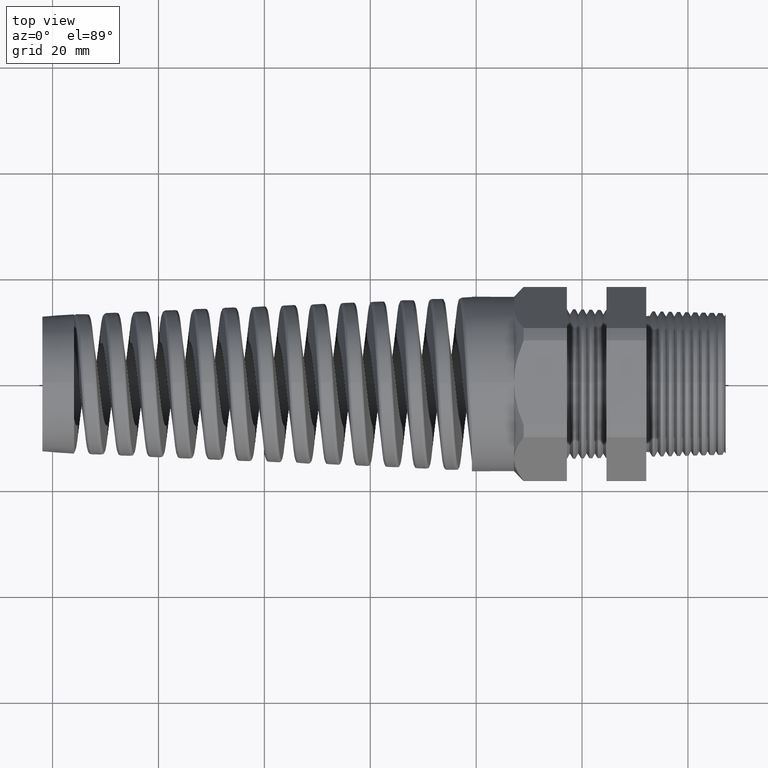
[diagram: clean part render]
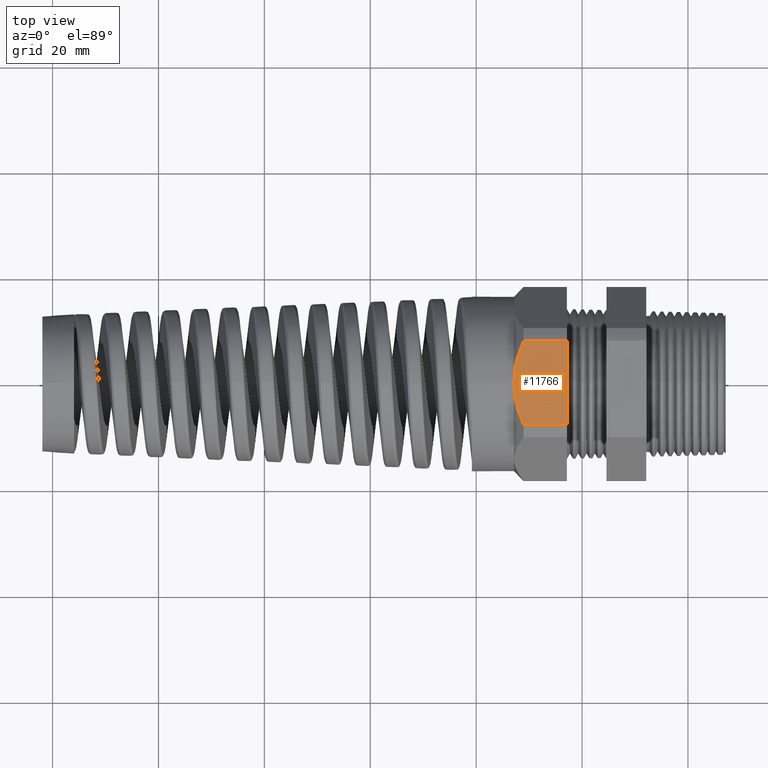
[diagram: same view with one face highlighted and labeled with its STEP entity id]
A machine part, top view. The second image highlights one B-rep face of the part: STEP entity #11766.
In plain terms, the highlighted planar face has unit normal (0, 0, 1).
Its self-contained STEP definition (entity closure, byte-faithful):
#11526 = VERTEX_POINT ( 'NONE', #16189 ) ;
#11660 = EDGE_LOOP ( 'NONE', ( #11661, #11665, #11750, #11752, #11753 ) ) ;
#11661 = ORIENTED_EDGE ( 'NONE', *, *, #11662, .T. ) ;
#11662 = EDGE_CURVE ( 'NONE', #11663, #11664, #16438, .T. ) ;
#11663 = VERTEX_POINT ( 'NONE', #16434 ) ;
#11664 = VERTEX_POINT ( 'NONE', #16433 ) ;
#11665 = ORIENTED_EDGE ( 'NONE', *, *, #11666, .T. ) ;
#11666 = EDGE_CURVE ( 'NONE', #11664, #11526, #16432, .T. ) ;
#11729 = EDGE_CURVE ( 'NONE', #11730, #11731, #16603, .T. ) ;
#11730 = VERTEX_POINT ( 'NONE', #16599 ) ;
#11731 = VERTEX_POINT ( 'NONE', #16598 ) ;
#11750 = ORIENTED_EDGE ( 'NONE', *, *, #11751, .T. ) ;
#11751 = EDGE_CURVE ( 'NONE', #11526, #11731, #16662, .T. ) ;
#11752 = ORIENTED_EDGE ( 'NONE', *, *, #11729, .F. ) ;
#11753 = ORIENTED_EDGE ( 'NONE', *, *, #11754, .F. ) ;
#11754 = EDGE_CURVE ( 'NONE', #11663, #11730, #16661, .T. ) ;
#11766 = ADVANCED_FACE ( 'NONE', ( #16690 ), #16689, .T. ) ;
#16189 = CARTESIAN_POINT ( 'NONE',  ( -1.293779527559055300, 0.0000000000000000000, 0.6499999999999999100 ) ) ;
#16417 = CARTESIAN_POINT ( 'NONE',  ( -1.293779527559055300, 0.0000000000000000000, 0.6499999999999999100 ) ) ;
#16418 = CARTESIAN_POINT ( 'NONE',  ( -1.293779527559055300, 0.02720867923416893000, 0.6499999999999999100 ) ) ;
#16419 = CARTESIAN_POINT ( 'NONE',  ( -1.292056826399679900, 0.05424748414116267000, 0.6500000000000001300 ) ) ;
#16420 = CARTESIAN_POINT ( 'NONE',  ( -1.285468250192981300, 0.1075827506458431600, 0.6500000000000000200 ) ) ;
#16421 = CARTESIAN_POINT ( 'NONE',  ( -1.280604725747993600, 0.1339536167969822800, 0.6500000000000001300 ) ) ;
#16422 = CARTESIAN_POINT ( 'NONE',  ( -1.268118492089873600, 0.1861735441654885100, 0.6500000000000000200 ) ) ;
#16423 = CARTESIAN_POINT ( 'NONE',  ( -1.260497422310233400, 0.2120229154253348000, 0.6499999999999998000 ) ) ;
#16424 = CARTESIAN_POINT ( 'NONE',  ( -1.242898012705099300, 0.2632758613625144600, 0.6499999999999999100 ) ) ;
#16425 = CARTESIAN_POINT ( 'NONE',  ( -1.232979788385818700, 0.2884953587440264300, 0.6499999999999999100 ) ) ;
#16426 = CARTESIAN_POINT ( 'NONE',  ( -1.222279527559055400, 0.3131489262315937900, 0.6499999999999999100 ) ) ;
#16432 = B_SPLINE_CURVE_WITH_KNOTS ( 'NONE', 3,
 ( #16426, #16425, #16424, #16423, #16422, #16421, #16420, #16419, #16418, #16417 ),
 .UNSPECIFIED., .F., .F.,
 ( 4, 2, 2, 2, 4 ),
 ( 0.01244868908973179600, 0.01448184335274441000, 0.01651499761575702200, 0.01854815187876963900, 0.02058130614178225300 ),
 .UNSPECIFIED. ) ;
#16433 = CARTESIAN_POINT ( 'NONE',  ( -1.222279527559055400, 0.3131489262315937900, 0.6499999999999999100 ) ) ;
#16434 = CARTESIAN_POINT ( 'NONE',  ( -0.9000787401574806800, 0.3131489262315937900, 0.6499999999999999100 ) ) ;
#16435 = DIRECTION ( 'NONE',  ( -1.000000000000000000, 0.0000000000000000000, 0.0000000000000000000 ) ) ;
#16436 = VECTOR ( 'NONE', #16435, 39.37007874015748100 ) ;
#16437 = CARTESIAN_POINT ( 'NONE',  ( 0.2800000000000000300, 0.3131489262315937900, 0.6499999999999999100 ) ) ;
#16438 = LINE ( 'NONE', #16437, #16436 ) ;
#16598 = CARTESIAN_POINT ( 'NONE',  ( -1.222279527559055400, -0.3131489262315937900, 0.6499999999999999100 ) ) ;
#16599 = CARTESIAN_POINT ( 'NONE',  ( -0.9000787401574806800, -0.3131489262315937400, 0.6500000000000000200 ) ) ;
#16600 = DIRECTION ( 'NONE',  ( -1.000000000000000000, 0.0000000000000000000, 0.0000000000000000000 ) ) ;
#16601 = VECTOR ( 'NONE', #16600, 39.37007874015748100 ) ;
#16602 = CARTESIAN_POINT ( 'NONE',  ( 0.2800000000000000300, -0.3131489262315937400, 0.6500000000000000200 ) ) ;
#16603 = LINE ( 'NONE', #16602, #16601 ) ;
#16650 = DIRECTION ( 'NONE',  ( 0.0000000000000000000, -1.000000000000000000, 0.0000000000000000000 ) ) ;
#16651 = CARTESIAN_POINT ( 'NONE',  ( -1.222279527559055400, -0.3131489262315937900, 0.6499999999999999100 ) ) ;
#16652 = CARTESIAN_POINT ( 'NONE',  ( -1.232987117017923400, -0.2884784734615908900, 0.6500000000000001300 ) ) ;
#16653 = CARTESIAN_POINT ( 'NONE',  ( -1.242903518245523500, -0.2632641016272525000, 0.6499999999999999100 ) ) ;
#16654 = CARTESIAN_POINT ( 'NONE',  ( -1.260522755415129900, -0.2119448594679247100, 0.6500000000000000200 ) ) ;
#16655 = CARTESIAN_POINT ( 'NONE',  ( -1.268146632882569200, -0.1860728161737497400, 0.6500000000000000200 ) ) ;
#16656 = CARTESIAN_POINT ( 'NONE',  ( -1.286870783586272300, -0.1077136765109595500, 0.6499999999999999100 ) ) ;
#16657 = CARTESIAN_POINT ( 'NONE',  ( -1.293779527559055300, -0.05447567936366842100, 0.6499999999999998000 ) ) ;
#16658 = CARTESIAN_POINT ( 'NONE',  ( -1.293779527559055300, 0.0000000000000000000, 0.6499999999999999100 ) ) ;
#16659 = VECTOR ( 'NONE', #16650, 39.37007874015748100 ) ;
#16660 = CARTESIAN_POINT ( 'NONE',  ( -0.9000787401574806800, 0.5599999999999999400, 0.6499999999999999100 ) ) ;
#16661 = LINE ( 'NONE', #16660, #16659 ) ;
#16662 = B_SPLINE_CURVE_WITH_KNOTS ( 'NONE', 3,
 ( #16658, #16657, #16656, #16655, #16654, #16653, #16652, #16651 ),
 .UNSPECIFIED., .F., .F.,
 ( 4, 2, 2, 4 ),
 ( 0.02058130614178225300, 0.02465197266607502600, 0.02668730592822141100, 0.02872263919036779900 ),
 .UNSPECIFIED. ) ;
#16685 = DIRECTION ( 'NONE',  ( 1.000000000000000000, 0.0000000000000000000, 0.0000000000000000000 ) ) ;
#16686 = DIRECTION ( 'NONE',  ( 0.0000000000000000000, 0.0000000000000000000, 1.000000000000000000 ) ) ;
#16687 = CARTESIAN_POINT ( 'NONE',  ( 0.2800000000000000300, -0.3131489262315937900, 0.6499999999999999100 ) ) ;
#16688 = AXIS2_PLACEMENT_3D ( 'NONE', #16687, #16686, #16685 ) ;
#16689 = PLANE ( 'NONE',  #16688 ) ;
#16690 = FACE_OUTER_BOUND ( 'NONE', #11660, .T. ) ;